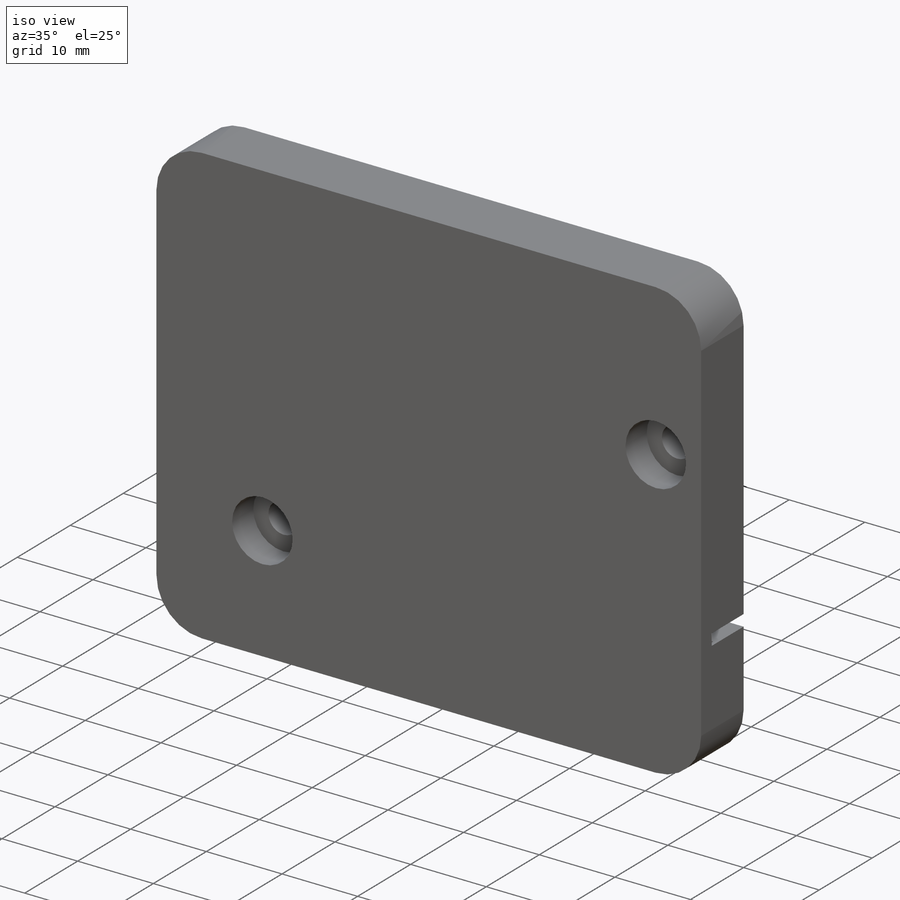
[diagram: iso view]
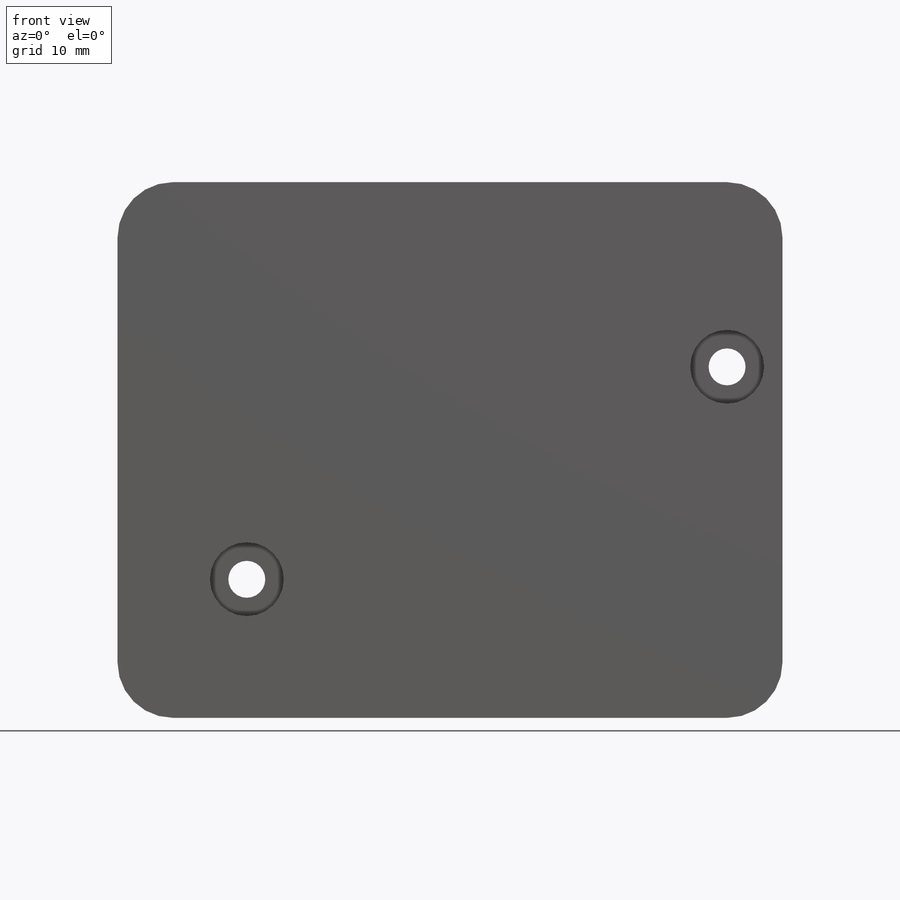
[diagram: front view]
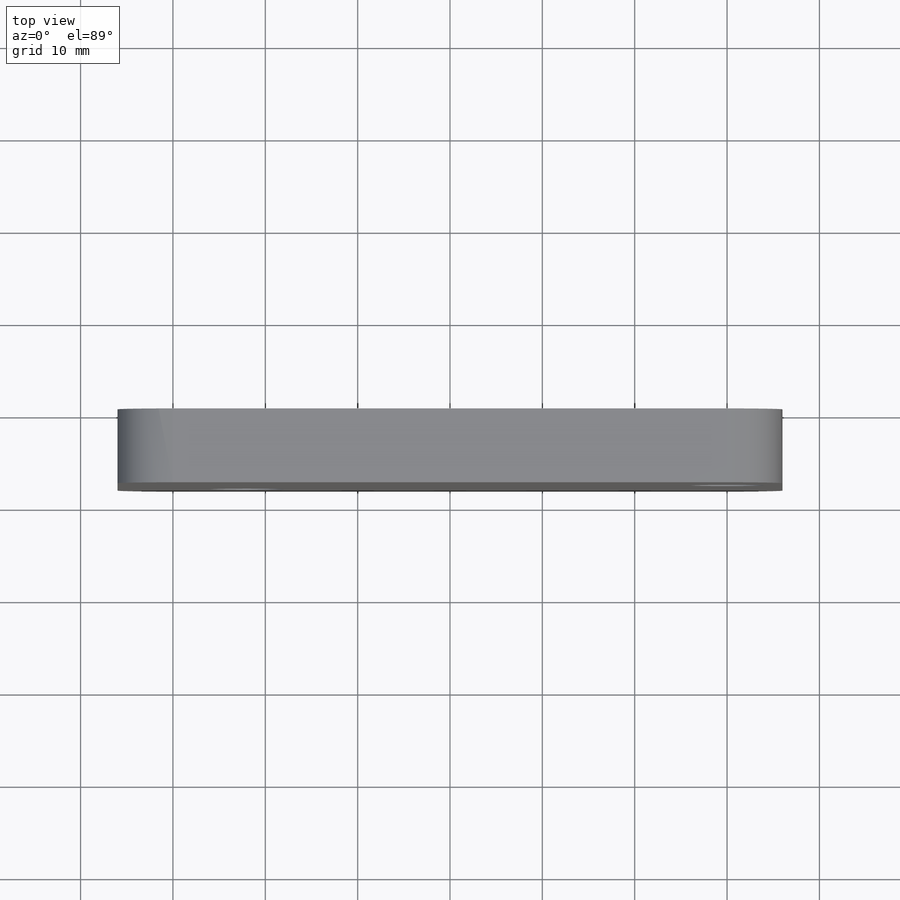
[diagram: top view]
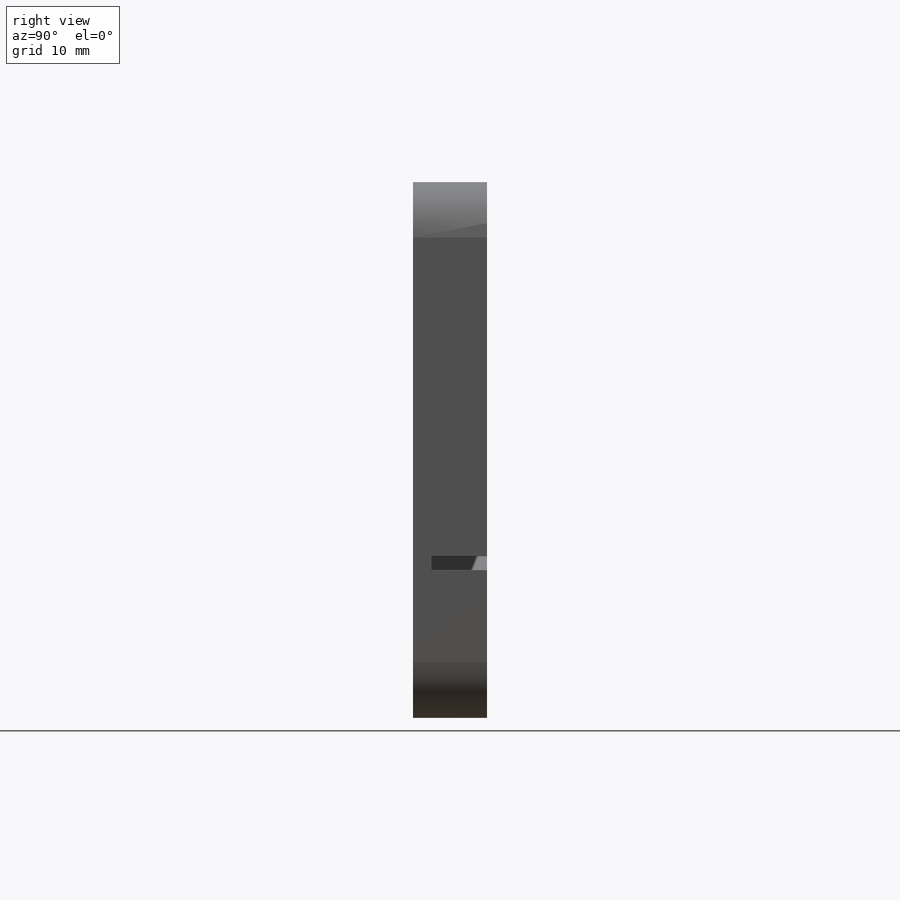
[diagram: right view]
SOLIDWORKS PART (.sldprt)
format: sldprt  version: not decoded by parser v0  size: 279,552 bytes
history: native  units: mm
features: sketch x6, extrude x3, cut_extrude x3, fillet x2, material x1 (+11 scaffold rows collapsed)
feature tree (26):
  scaffold x11  (default folders/planes/origin — collapsed)
  material  "Material <not specified>"
  sketch  "Sketch1"  dims[D1=6.0mm D2=72.0mm D3=58.0mm]
  extrude  "Boss-Extrude1"  Depth=8mm
  sketch  "Sketch2"  dims[D3=3.0mm D6=2.0mm D1=3.0mm D2=3.0mm D4=3.0mm D5=~17.963825mm]
  cut_extrude  "Cut-Extrude1"  Depth=6mm
  sketch  "Sketch3"  dims[D1=4.0mm]
  cut_extrude  "Cut-Extrude2"  [1 undecoded]
  sketch  "Sketch4"  dims[D1=8.0mm]
  cut_extrude  "Cut-Extrude3"  Depth=4mm
  fillet  "Fillet2"  Radius=6mm
  fillet  "Fillet1"  Radius=2mm
  sketch  "Sketch6"  dims[c1.D1=0.5mm c1.D2=1.5mm c1.D3=3.0mm c1.D4=5.0mm c1.D5=5.0mm c1.D6=2.0mm c1.D7=2.0mm c1.D8=2.0mm c1.D9=2.0mm c2.D4=2.0mm c2.D5=2.0mm]
  extrude  "Boss-Extrude3"  Depth=1mm
  sketch  "Sketch7"  dims[D2=2.0mm D1=2.0mm]
  extrude  "Boss-Extrude4"  [1 undecoded]
decode coverage: 12 of 14 modeling features carry decoded parameters
note: ~ marks probable driven/reference dimensions
note: 2 parameter values undecoded
note: suppression state not decoded; provenance and decode notes live in map.json
